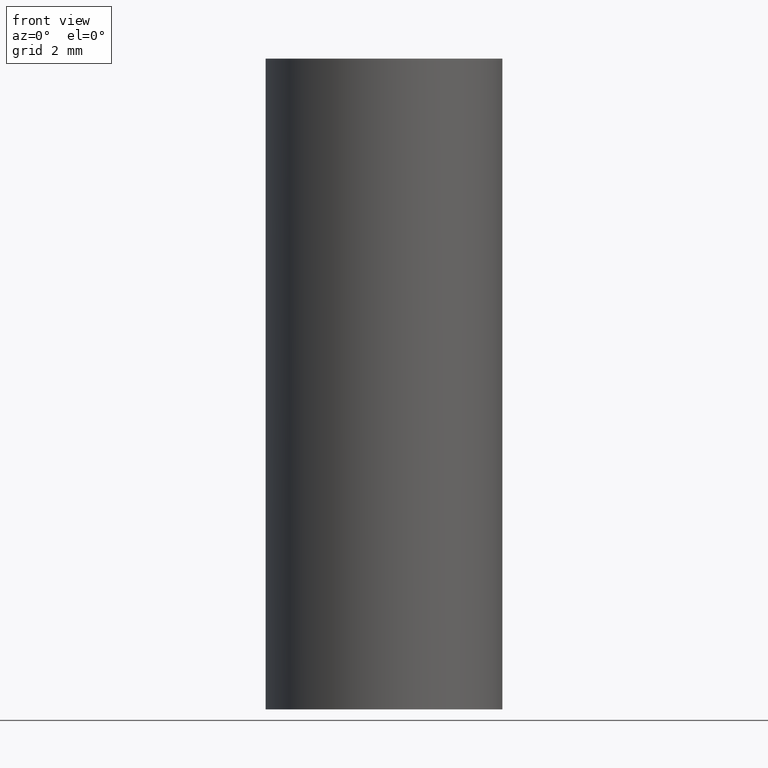
[diagram: clean part render]
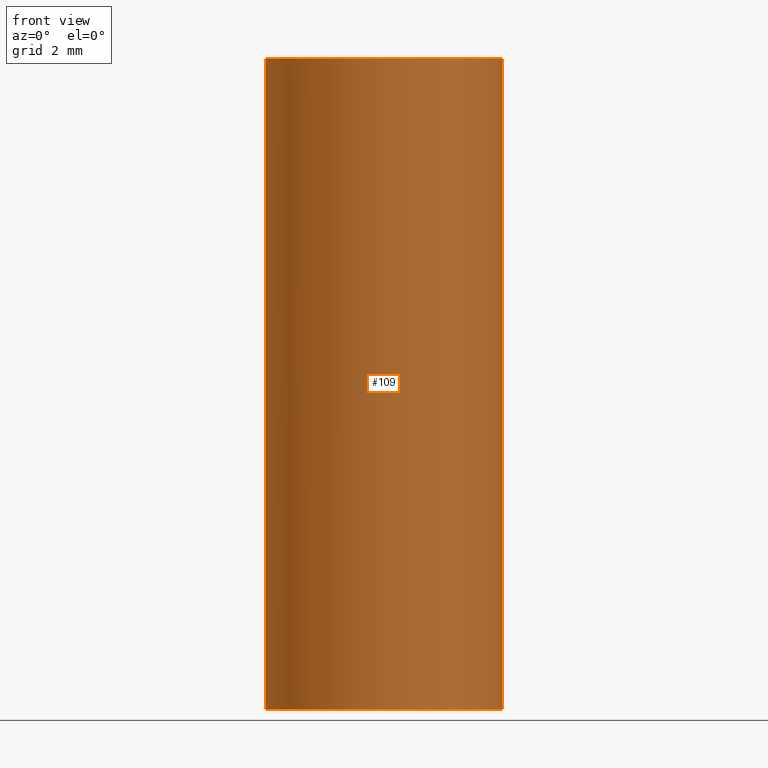
[diagram: same view with one face highlighted and labeled with its STEP entity id]
A machine part, front view. The second image highlights one B-rep face of the part: STEP entity #109.
In plain terms, the highlighted cylindrical surface (partial cylindrical patch) has radius 4 mm, axis along (0, 0, 1).
Its self-contained STEP definition (entity closure, byte-faithful):
#49=CARTESIAN_POINT('',(-4.0,4.898587E-016,0.0));
#50=VERTEX_POINT('',#49);
#51=CARTESIAN_POINT('',(4.0,0.0,0.0));
#52=VERTEX_POINT('',#51);
#60=CARTESIAN_POINT('',(-4.0,4.898587E-016,22.0));
#61=VERTEX_POINT('',#60);
#62=CARTESIAN_POINT('',(-4.0,4.898587E-016,0.0));
#63=DIRECTION('',(0.0,0.0,1.0));
#64=VECTOR('',#63,22.0);
#65=LINE('',#62,#64);
#66=EDGE_CURVE('',#50,#61,#65,.T.);
#68=CARTESIAN_POINT('',(4.0,0.0,22.0));
#69=VERTEX_POINT('',#68);
#77=CARTESIAN_POINT('',(4.0,0.0,0.0));
#78=DIRECTION('',(0.0,0.0,1.0));
#79=VECTOR('',#78,22.0);
#80=LINE('',#77,#79);
#81=EDGE_CURVE('',#52,#69,#80,.T.);
#86=CARTESIAN_POINT('',(0.0,0.0,-1.000000E-008));
#87=DIRECTION('',(0.0,0.0,1.0));
#88=DIRECTION('',(0.0,1.0,0.0));
#89=AXIS2_PLACEMENT_3D('',#86,#87,#88);
#90=CYLINDRICAL_SURFACE('',#89,4.0);
#91=ORIENTED_EDGE('',*,*,#66,.F.);
#92=CARTESIAN_POINT('',(0.0,0.0,0.0));
#93=DIRECTION('',(0.0,0.0,-1.0));
#94=DIRECTION('',(1.0,0.0,0.0));
#95=AXIS2_PLACEMENT_3D('',#92,#93,#94);
#96=CIRCLE('',#95,4.0);
#97=EDGE_CURVE('',#52,#50,#96,.T.);
#98=ORIENTED_EDGE('',*,*,#97,.F.);
#99=ORIENTED_EDGE('',*,*,#81,.T.);
#100=CARTESIAN_POINT('',(0.0,0.0,22.0));
#101=DIRECTION('',(0.0,0.0,-1.0));
#102=DIRECTION('',(1.0,0.0,0.0));
#103=AXIS2_PLACEMENT_3D('',#100,#101,#102);
#104=CIRCLE('',#103,4.0);
#105=EDGE_CURVE('',#69,#61,#104,.T.);
#106=ORIENTED_EDGE('',*,*,#105,.T.);
#107=EDGE_LOOP('',(#91,#98,#99,#106));
#108=FACE_OUTER_BOUND('',#107,.T.);
#109=ADVANCED_FACE('',(#108),#90,.T.);